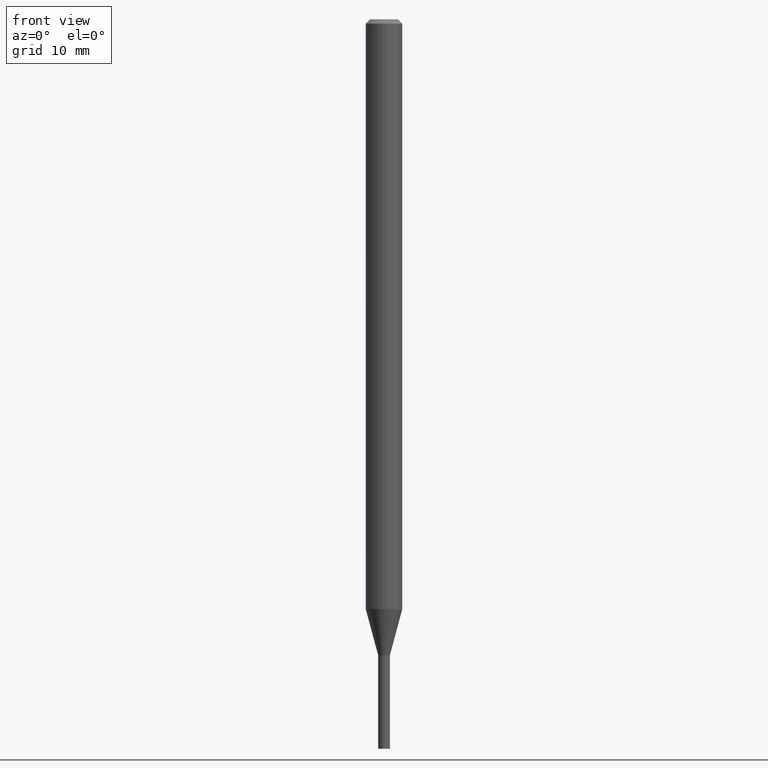
[diagram: clean part render]
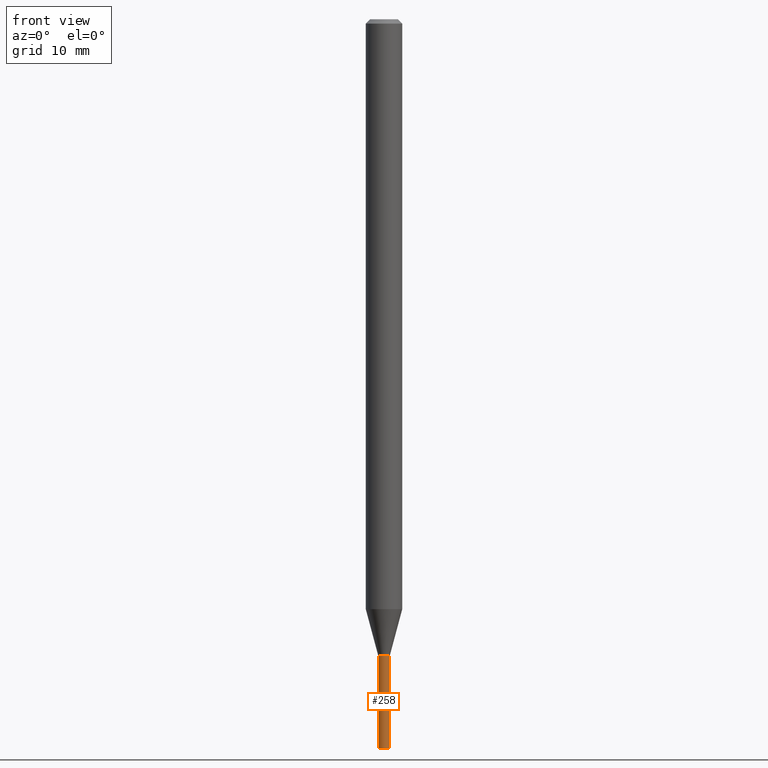
[diagram: same view with one face highlighted and labeled with its STEP entity id]
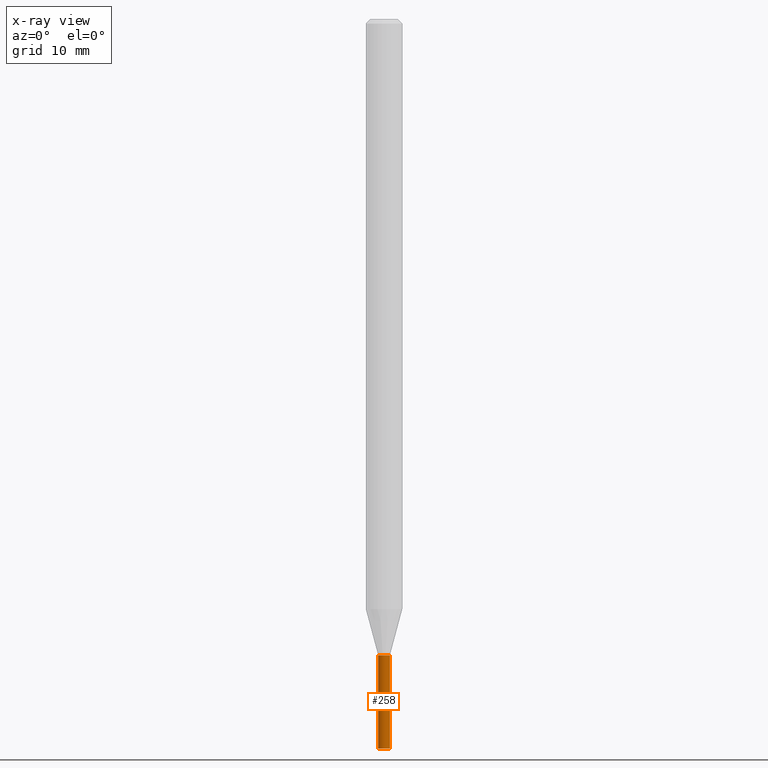
[diagram: x-ray of the same camera — body ghosted, the highlighted face saturated]
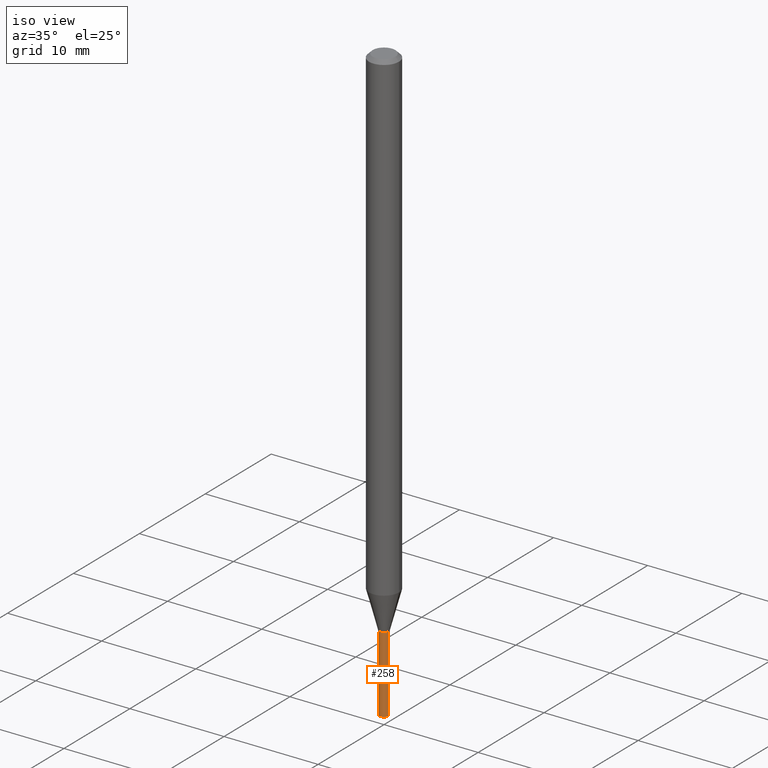
[diagram: same view with one face highlighted and labeled with its STEP entity id]
A machine part, front view. The second image highlights one B-rep face of the part: STEP entity #258.
The next image is the same camera in x-ray: the body ghosted, the highlighted face saturated — about 0% of this face is hidden behind the body in this view.
A second angle (iso view) of the same face is appended — the face is thin or edge-on in the first view.
In plain terms, the highlighted cylindrical surface (edge-blend (fillet) strip) has radius 0.508 mm, axis along (-0, 0, 1).
Its self-contained STEP definition (entity closure, byte-faithful):
#4 = CIRCLE ( 'NONE', #327, 0.02000000000000000042 ) ;
#10 = CARTESIAN_POINT ( 'NONE',  ( -0.02000000000000000042, -8.027957785740939971E-15, -2.180000000000000160 ) ) ;
#13 = EDGE_LOOP ( 'NONE', ( #414, #155, #272, #370 ) ) ;
#28 = CYLINDRICAL_SURFACE ( 'NONE', #61, 0.02000000000000000042 ) ;
#29 = VECTOR ( 'NONE', #173, 39.37007874015748143 ) ;
#41 = CARTESIAN_POINT ( 'NONE',  ( 6.113672015462842613E-29, -8.728703347107864943E-15, -2.500000000000000000 ) ) ;
#44 = DIRECTION ( 'NONE',  ( -2.445468806185136597E-29, 3.491481338843145583E-15, 1.000000000000000000 ) ) ;
#61 = AXIS2_PLACEMENT_3D ( 'NONE', #317, #352, #172 ) ;
#72 = VERTEX_POINT ( 'NONE', #385 ) ;
#83 = DIRECTION ( 'NONE',  ( 1.000000000000000000, -6.982962677686284065E-15, 0.000000000000000000 ) ) ;
#95 = DIRECTION ( 'NONE',  ( -2.445468806185136877E-29, 3.491481338843145188E-15, 1.000000000000000000 ) ) ;
#139 = EDGE_CURVE ( 'NONE', #72, #348, #457, .T. ) ;
#145 = CARTESIAN_POINT ( 'NONE',  ( 5.331121997483598767E-29, -7.611429318678058482E-15, -2.180000000000000160 ) ) ;
#155 = ORIENTED_EDGE ( 'NONE', *, *, #358, .T. ) ;
#157 = VERTEX_POINT ( 'NONE', #199 ) ;
#172 = DIRECTION ( 'NONE',  ( 1.000000000000000000, -6.982962677686265922E-15, 4.876176775795935793E-29 ) ) ;
#173 = DIRECTION ( 'NONE',  ( -2.445468806185136877E-29, 3.491481338843145188E-15, 1.000000000000000000 ) ) ;
#182 = DIRECTION ( 'NONE',  ( -2.445468806185136597E-29, 3.491481338843145583E-15, 1.000000000000000000 ) ) ;
#190 = VERTEX_POINT ( 'NONE', #431 ) ;
#199 = CARTESIAN_POINT ( 'NONE',  ( 0.02000000000000000042, -7.751088572231783501E-15, -2.180000000000000160 ) ) ;
#206 = FACE_OUTER_BOUND ( 'NONE', #13, .T. ) ;
#235 = EDGE_CURVE ( 'NONE', #190, #157, #246, .T. ) ;
#246 = LINE ( 'NONE', #466, #29 ) ;
#258 = ADVANCED_FACE ( 'NONE', ( #206 ), #28, .T. ) ;
#272 = ORIENTED_EDGE ( 'NONE', *, *, #235, .T. ) ;
#317 = CARTESIAN_POINT ( 'NONE',  ( 0.000000000000000000, 0.000000000000000000, 0.000000000000000000 ) ) ;
#327 = AXIS2_PLACEMENT_3D ( 'NONE', #145, #44, #83 ) ;
#348 = VERTEX_POINT ( 'NONE', #10 ) ;
#352 = DIRECTION ( 'NONE',  ( -2.445468806185136597E-29, 3.491481338843145583E-15, 1.000000000000000000 ) ) ;
#358 = EDGE_CURVE ( 'NONE', #72, #190, #442, .T. ) ;
#360 = AXIS2_PLACEMENT_3D ( 'NONE', #41, #182, #441 ) ;
#370 = ORIENTED_EDGE ( 'NONE', *, *, #389, .F. ) ;
#381 = CARTESIAN_POINT ( 'NONE',  ( -0.02000000000000000042, 1.421085471520200401E-16, -9.837870180509812545E-31 ) ) ;
#385 = CARTESIAN_POINT ( 'NONE',  ( -0.02000000000000000042, -8.027957785740939971E-15, -2.500000000000000000 ) ) ;
#389 = EDGE_CURVE ( 'NONE', #348, #157, #4, .T. ) ;
#399 = VECTOR ( 'NONE', #95, 39.37007874015748143 ) ;
#414 = ORIENTED_EDGE ( 'NONE', *, *, #139, .F. ) ;
#431 = CARTESIAN_POINT ( 'NONE',  ( 0.02000000000000000042, -8.868362600661589961E-15, -2.500000000000000000 ) ) ;
#441 = DIRECTION ( 'NONE',  ( 1.000000000000000000, -6.982962677686284065E-15, 0.000000000000000000 ) ) ;
#442 = CIRCLE ( 'NONE', #360, 0.02000000000000000042 ) ;
#457 = LINE ( 'NONE', #381, #399 ) ;
#466 = CARTESIAN_POINT ( 'NONE',  ( 0.02000000000000000042, -1.396592535537253145E-16, 9.752353551591871936E-31 ) ) ;